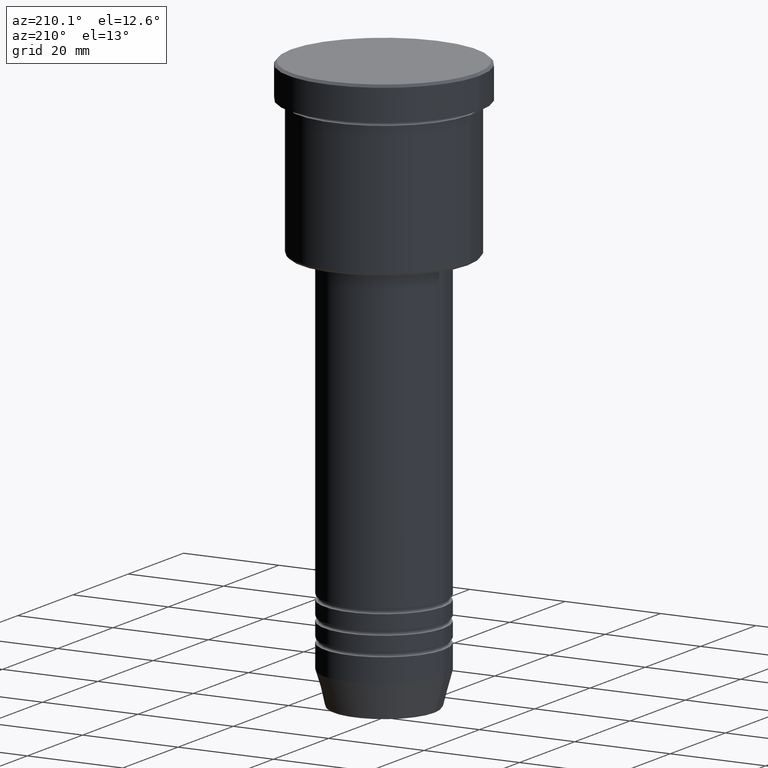
[diagram: clean part render]
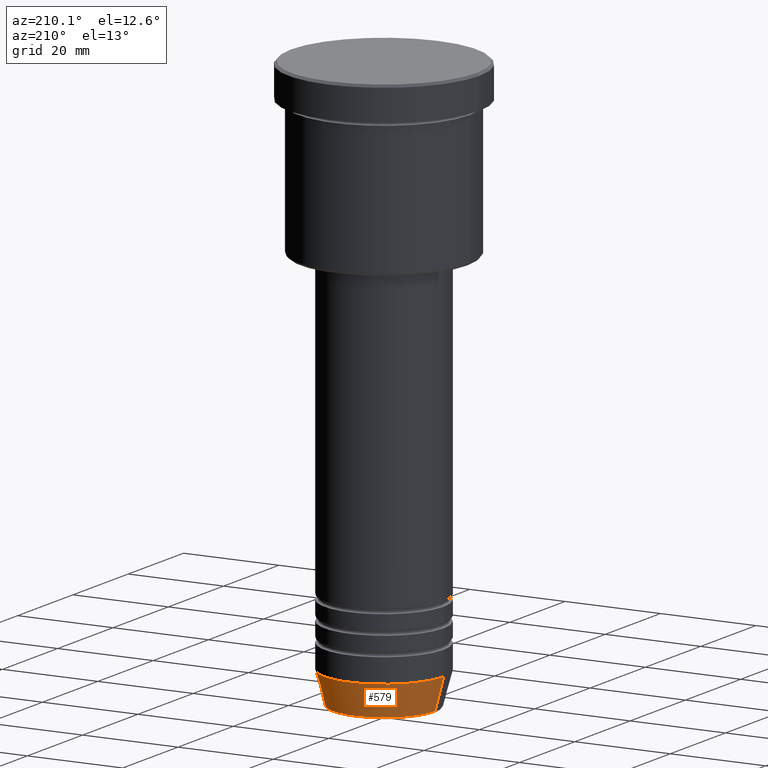
[diagram: same view with one face highlighted and labeled with its STEP entity id]
A machine part, auxiliary view. The second image highlights one B-rep face of the part: STEP entity #579.
In plain terms, the highlighted conical surface has half-angle 15 deg.
Its self-contained STEP definition (entity closure, byte-faithful):
#24 = EDGE_CURVE ( 'NONE', #507, #593, #144, .T. ) ;
#87 = CARTESIAN_POINT ( 'NONE',  ( 12.50000000000000000, 0.000000000000000000, -112.9999999999999858 ) ) ;
#128 = EDGE_CURVE ( 'NONE', #756, #458, #804, .T. ) ;
#144 = LINE ( 'NONE', #322, #232 ) ;
#145 = CARTESIAN_POINT ( 'NONE',  ( 0.000000000000000000, 0.000000000000000000, -119.6294095225512564 ) ) ;
#146 = ORIENTED_EDGE ( 'NONE', *, *, #603, .T. ) ;
#232 = VECTOR ( 'NONE', #1067, 1000.000000000000000 ) ;
#275 = CIRCLE ( 'NONE', #706, 10.72365507213718416 ) ;
#276 = AXIS2_PLACEMENT_3D ( 'NONE', #659, #1146, #793 ) ;
#322 = CARTESIAN_POINT ( 'NONE',  ( -12.50000000000000000, 1.530808498934191521E-15, -112.9999999999999858 ) ) ;
#424 = CIRCLE ( 'NONE', #276, 12.50000000000000000 ) ;
#425 = ORIENTED_EDGE ( 'NONE', *, *, #128, .F. ) ;
#458 = VERTEX_POINT ( 'NONE', #899 ) ;
#459 = CARTESIAN_POINT ( 'NONE',  ( -10.72365507213718416, 1.422038742429749727E-15, -119.6294095225512564 ) ) ;
#479 = CARTESIAN_POINT ( 'NONE',  ( -12.50000000000000000, 1.530808498934191521E-15, -112.9999999999999858 ) ) ;
#499 = ORIENTED_EDGE ( 'NONE', *, *, #24, .T. ) ;
#506 = CONICAL_SURFACE ( 'NONE', #1172, 12.50000000000000000, 0.2617993877991500740 ) ;
#507 = VERTEX_POINT ( 'NONE', #459 ) ;
#563 = DIRECTION ( 'NONE',  ( -0.000000000000000000, -0.000000000000000000, 1.000000000000000000 ) ) ;
#579 = ADVANCED_FACE ( 'NONE', ( #846 ), #506, .T. ) ;
#593 = VERTEX_POINT ( 'NONE', #479 ) ;
#603 = EDGE_CURVE ( 'NONE', #756, #507, #275, .T. ) ;
#610 = DIRECTION ( 'NONE',  ( -0.000000000000000000, -0.000000000000000000, 1.000000000000000000 ) ) ;
#659 = CARTESIAN_POINT ( 'NONE',  ( 0.000000000000000000, 0.000000000000000000, -112.9999999999999858 ) ) ;
#681 = CARTESIAN_POINT ( 'NONE',  ( 10.72365507213718416, 0.000000000000000000, -119.6294095225512564 ) ) ;
#706 = AXIS2_PLACEMENT_3D ( 'NONE', #145, #610, #988 ) ;
#756 = VERTEX_POINT ( 'NONE', #681 ) ;
#767 = CARTESIAN_POINT ( 'NONE',  ( 0.000000000000000000, 0.000000000000000000, -112.9999999999999858 ) ) ;
#793 = DIRECTION ( 'NONE',  ( 1.000000000000000000, 0.000000000000000000, 0.000000000000000000 ) ) ;
#797 = DIRECTION ( 'NONE',  ( 0.2588190451025213501, 0.000000000000000000, 0.9659258262890680902 ) ) ;
#804 = LINE ( 'NONE', #87, #1153 ) ;
#846 = FACE_OUTER_BOUND ( 'NONE', #883, .T. ) ;
#883 = EDGE_LOOP ( 'NONE', ( #146, #499, #938, #425 ) ) ;
#899 = CARTESIAN_POINT ( 'NONE',  ( 12.50000000000000000, 0.000000000000000000, -112.9999999999999858 ) ) ;
#938 = ORIENTED_EDGE ( 'NONE', *, *, #1005, .F. ) ;
#988 = DIRECTION ( 'NONE',  ( 1.000000000000000000, 0.000000000000000000, 0.000000000000000000 ) ) ;
#1005 = EDGE_CURVE ( 'NONE', #458, #593, #424, .T. ) ;
#1052 = DIRECTION ( 'NONE',  ( 1.000000000000000000, 0.000000000000000000, 0.000000000000000000 ) ) ;
#1067 = DIRECTION ( 'NONE',  ( -0.2588190451025213501, 3.169619151431772337E-17, 0.9659258262890680902 ) ) ;
#1146 = DIRECTION ( 'NONE',  ( -0.000000000000000000, -0.000000000000000000, 1.000000000000000000 ) ) ;
#1153 = VECTOR ( 'NONE', #797, 1000.000000000000000 ) ;
#1172 = AXIS2_PLACEMENT_3D ( 'NONE', #767, #563, #1052 ) ;